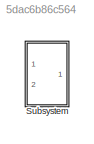
MODEL slx_5dac6b86c564
KIND model
CONFIG AbsTol = auto
CONFIG EnableMultiTasking = off
CONFIG FixedStep = auto
CONFIG MaxStep = auto
CONFIG MinStep = auto
CONFIG RelTol = 1e-3
CONFIG SampleTimeConstraint = Unconstrained
CONFIG SolverName = VariableStepAuto
CONFIG StartTime = 0.0
CONFIG StopTime = 10.0
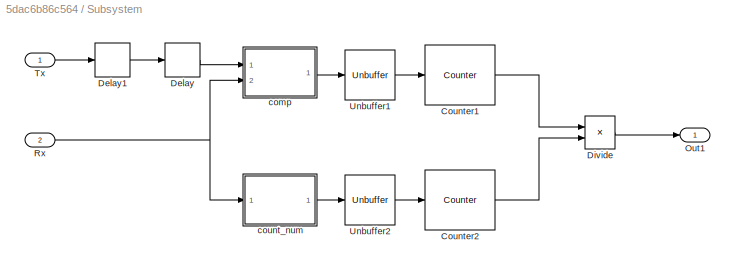
BLOCK [SubSystem] Subsystem
  Ports = [2, 1]
  RequestExecContextInheritance = off
BLOCK [Reference] Subsystem/Counter1  REF=dspswit3/Counter
  Ports = [1, 1]
  SourceBlock = dspswit3/Counter
  SourceProductBaseCode = DS
  SourceType = Counter
BLOCK [Reference] Subsystem/Counter2  REF=dspswit3/Counter
  Ports = [1, 1]
  SourceBlock = dspswit3/Counter
  SourceProductBaseCode = DS
  SourceType = Counter
BLOCK [Delay] Subsystem/Delay
  DelayLength = 1
  InitialCondition = 0
  InputPortMap = u0
  Ports = [1, 1]
BLOCK [Delay] Subsystem/Delay1
  DelayLength = 1
  InitialCondition = 0
  InputPortMap = u0
  Ports = [1, 1]
BLOCK [Product] Subsystem/Divide
  Inputs = */
  Ports = [2, 1]
BLOCK [Outport] Subsystem/Out1
BLOCK [Inport] Subsystem/Rx
  Port = 2
BLOCK [Inport] Subsystem/Tx
BLOCK [Unbuffer] Subsystem/Unbuffer1
  Ports = [1, 1]
BLOCK [Unbuffer] Subsystem/Unbuffer2
  Ports = [1, 1]
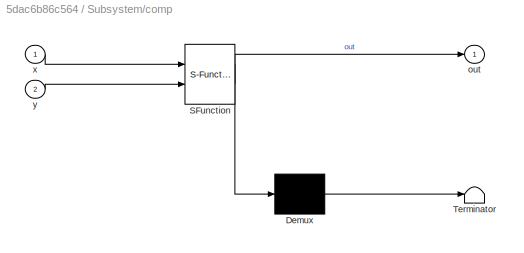
BLOCK [SubSystem] Subsystem/comp
  ErrorFcn = Stateflow.Translate.translate
  PermitHierarchicalResolution = ExplicitOnly
  Ports = [2, 1]
  RequestExecContextInheritance = off
  SFBlockType = MATLAB Function
  TreatAsAtomicUnit = on
BLOCK [Demux] Subsystem/comp/ Demux 
  Outputs = 1
  Ports = [1, 1]
BLOCK [S-Function] Subsystem/comp/ SFunction 
  EnableBusSupport = on
  FunctionName = sf_sfun
  PortCounts = [2 2]
  Ports = [2, 2]
  SFcnIsStateOwnerBlock = off
  SFunctionDeploymentMode = off
  Tag = Stateflow S-Function 3
BLOCK [Terminator] Subsystem/comp/ Terminator 
BLOCK [Outport] Subsystem/comp/out
BLOCK [Inport] Subsystem/comp/x
BLOCK [Inport] Subsystem/comp/y
  Port = 2
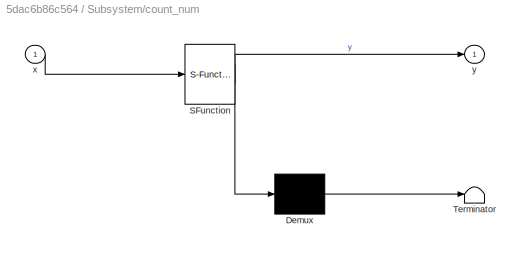
BLOCK [SubSystem] Subsystem/count_num
  ErrorFcn = Stateflow.Translate.translate
  PermitHierarchicalResolution = ExplicitOnly
  Ports = [1, 1]
  RequestExecContextInheritance = off
  SFBlockType = MATLAB Function
  TreatAsAtomicUnit = on
BLOCK [Demux] Subsystem/count_num/ Demux 
  Outputs = 1
  Ports = [1, 1]
BLOCK [S-Function] Subsystem/count_num/ SFunction 
  EnableBusSupport = on
  FunctionName = sf_sfun
  PortCounts = [1 2]
  Ports = [1, 2]
  SFcnIsStateOwnerBlock = off
  SFunctionDeploymentMode = off
  Tag = Stateflow S-Function 4
BLOCK [Terminator] Subsystem/count_num/ Terminator 
BLOCK [Inport] Subsystem/count_num/x
BLOCK [Outport] Subsystem/count_num/y
LINE Subsystem/Counter1:1 -> Subsystem/Divide:1
LINE Subsystem/Counter2:1 -> Subsystem/Divide:2
LINE Subsystem/Delay1:1 -> Subsystem/Delay:1
LINE Subsystem/Delay:1 -> Subsystem/comp:1
LINE Subsystem/Divide:1 -> Subsystem/Out1:1
NET Subsystem/Rx:1 -> Subsystem/comp:2, Subsystem/count_num:1
LINE Subsystem/Tx:1 -> Subsystem/Delay1:1
LINE Subsystem/Unbuffer1:1 -> Subsystem/Counter1:1
LINE Subsystem/Unbuffer2:1 -> Subsystem/Counter2:1
LINE Subsystem/comp:1 -> Subsystem/Unbuffer1:1
LINE Subsystem/count_num:1 -> Subsystem/Unbuffer2:1
note: NET lines group one-source signal fan-out (src -> all destinations, sorted); 1:1 wires keep LINE
CHART Subsystem/count_num states=1 transitions=1
  STATE_LABEL 'eML_blk_kernel()'
  STATE_LABEL 'SCRIPT:\nfunction y = count_num(x)\nlen = length(x);\ny = zeros(len,1);\ny(1,1) = 1;\nreturn\n'
CHART Subsystem/comp states=1 transitions=1
  STATE_LABEL 'eML_blk_kernel()'
  STATE_LABEL 'SCRIPT:\nfunction out = comp(x,y)\nlen = length(x);\nout = zeros(len,1);\nfor p = 1:len\n    if (x(p) ~= y(p))\n        out(1,1) = 1;\n        return\n    end\nend\nreturn\n'
CHART  states=0 transitions=0
CHART  states=0 transitions=0
